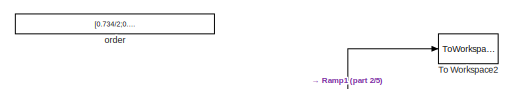
[diagram: root canvas - part 1/5, top left region]
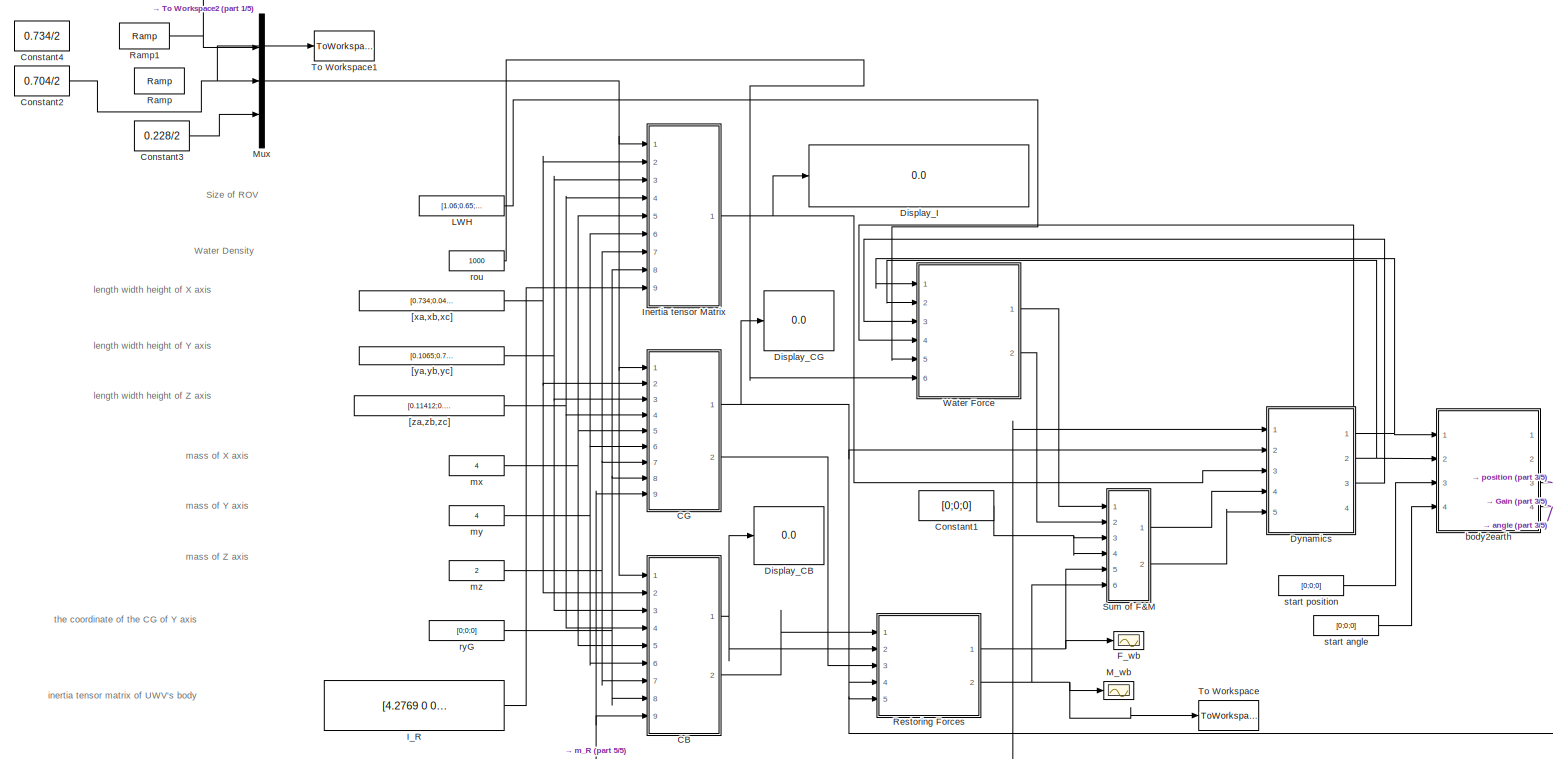
[diagram: root canvas - part 2/5, most of the canvas]
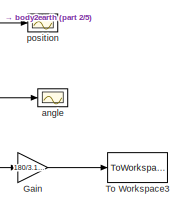
[diagram: root canvas - part 3/5, bottom right region]
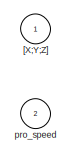
[diagram: root canvas - part 4/5, bottom left region]
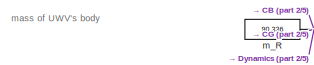
[diagram: root canvas - part 5/5, bottom left region]
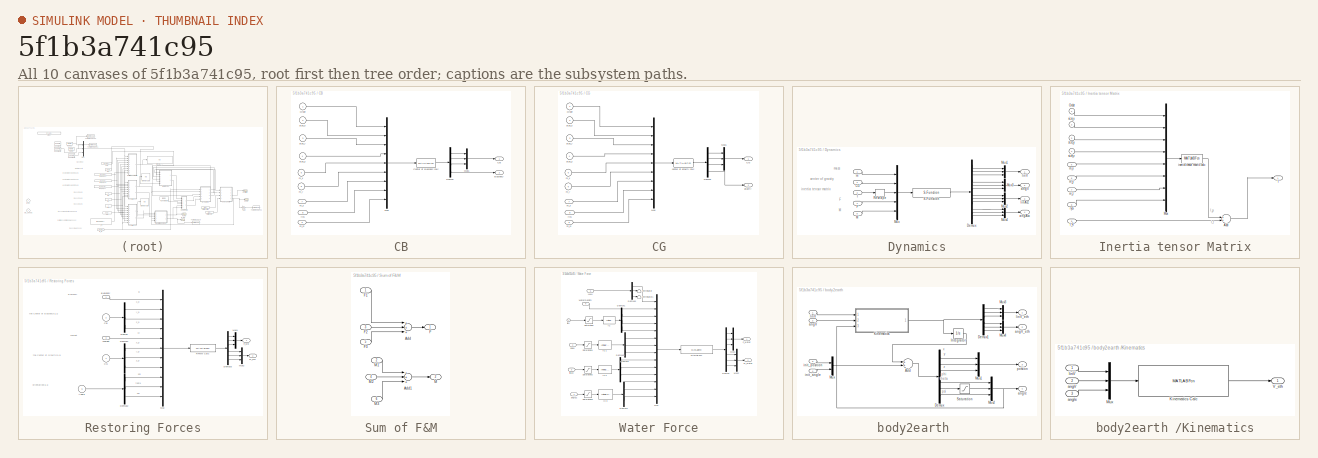
[diagram: thumbnail index - all 10 canvases of the model, root first then tree order]
MODEL slx_5f1b3a741c95
KIND model
CONFIG AbsTol = auto
CONFIG EnableMultiTasking = on
CONFIG FixedStep = 0.01
CONFIG MaxStep = auto
CONFIG MinStep = auto
CONFIG RelTol = 1e-3
CONFIG SampleTimeConstraint = Unconstrained
CONFIG Solver = ode3
CONFIG SolverName = ode3
CONFIG StartTime = 0.0
CONFIG StopTime = 5
BLOCK [SubSystem] CB
  Ports = [9, 2]
  RequestExecContextInheritance = off
BLOCK [Outport] CB/Buoyancy
  IconDisplay = Port number
  Port = 2
BLOCK [Outport] CB/CB
  IconDisplay = Port number
BLOCK [MATLABFcn] CB/Center of Buoyancy calc
  MATLABFcn = CB
  Output1D = off
  Ports = [1, 1]
BLOCK [Demux] CB/Demux
  DisplayOption = bar
  Ports = [1, 4]
BLOCK [Mux] CB/Mux
  DisplayOption = bar
  Inputs = 9
  Ports = [9, 1]
BLOCK [Mux] CB/Mux1
  DisplayOption = bar
  Inputs = 3
  Ports = [3, 1]
BLOCK [Inport] CB/Order
  IconDisplay = Port number
BLOCK [Inport] CB/m_R
  IconDisplay = Port number
  Port = 9
BLOCK [Inport] CB/m_x
  IconDisplay = Port number
  Port = 5
BLOCK [Inport] CB/m_y
  IconDisplay = Port number
  Port = 6
BLOCK [Inport] CB/m_z
  IconDisplay = Port number
  Port = 7
BLOCK [Inport] CB/ryG
  IconDisplay = Port number
  Port = 8
BLOCK [Inport] CB/size_x
  IconDisplay = Port number
  Port = 2
BLOCK [Inport] CB/size_y
  IconDisplay = Port number
  Port = 3
BLOCK [Inport] CB/size_z
  IconDisplay = Port number
  Port = 4
BLOCK [SubSystem] CG
  Ports = [9, 2]
  RequestExecContextInheritance = off
BLOCK [Outport] CG/CG
  IconDisplay = Port number
BLOCK [Demux] CG/Demux
  DisplayOption = bar
  Ports = [1, 4]
BLOCK [Mux] CG/Mux
  DisplayOption = bar
  Inputs = 9
  Ports = [9, 1]
BLOCK [Mux] CG/Mux1
  DisplayOption = bar
  Inputs = 3
  Ports = [3, 1]
BLOCK [Inport] CG/Order
  IconDisplay = Port number
BLOCK [MATLABFcn] CG/center of gravity calc
  MATLABFcn = CG
  Output1D = off
  Ports = [1, 1]
BLOCK [Outport] CG/gravity
  IconDisplay = Port number
  Port = 2
BLOCK [Inport] CG/m_R
  IconDisplay = Port number
  Port = 9
BLOCK [Inport] CG/m_x
  IconDisplay = Port number
  Port = 5
BLOCK [Inport] CG/m_y
  IconDisplay = Port number
  Port = 6
BLOCK [Inport] CG/m_z
  IconDisplay = Port number
  Port = 7
BLOCK [Inport] CG/ryG
  IconDisplay = Port number
  Port = 8
BLOCK [Inport] CG/size_x
  IconDisplay = Port number
  Port = 2
BLOCK [Inport] CG/size_y
  IconDisplay = Port number
  Port = 3
BLOCK [Inport] CG/size_z
  IconDisplay = Port number
  Port = 4
BLOCK [Constant] Constant1
  Value = [0;0;0]
BLOCK [Constant] Constant2
  Value = 0.704/2
BLOCK [Constant] Constant3
  Value = 0.228/2
BLOCK [Constant] Constant4
  Value = 0.734/2
BLOCK [Display] Display_CB
  Decimation = 1
  Ports = [1]
BLOCK [Display] Display_CG
  Decimation = 1
  Ports = [1]
BLOCK [Display] Display_I
  Decimation = 1
  Ports = [1]
BLOCK [SubSystem] Dynamics
  Ports = [5, 4]
  RequestExecContextInheritance = off
BLOCK [Inport] Dynamics/CG
  IconDisplay = Port number
  Port = 2
BLOCK [Demux] Dynamics/Demux
  DisplayOption = bar
  Outputs = 12
  Ports = [1, 12]
BLOCK [Inport] Dynamics/F
  IconDisplay = Port number
  Port = 4
BLOCK [Inport] Dynamics/I
  IconDisplay = Port number
  Port = 3
BLOCK [Inport] Dynamics/M
  IconDisplay = Port number
  Port = 5
BLOCK [Mux] Dynamics/Mux
  DisplayOption = bar
  Inputs = 5
  Ports = [5, 1]
BLOCK [Mux] Dynamics/Mux1
  DisplayOption = bar
  Inputs = 3
  Ports = [3, 1]
BLOCK [Mux] Dynamics/Mux2
  DisplayOption = bar
  Inputs = 3
  Ports = [3, 1]
BLOCK [Mux] Dynamics/Mux3
  DisplayOption = bar
  Inputs = 3
  Ports = [3, 1]
BLOCK [Mux] Dynamics/Mux4
  DisplayOption = bar
  Inputs = 3
  Ports = [3, 1]
BLOCK [Reshape] Dynamics/Reshape
  Ports = [1, 1]
BLOCK [S-Function] Dynamics/S-Function
  EnableBusSupport = off
  FunctionName = Decoupled_Dynamics
  Ports = [1, 1]
  SFcnIsStateOwnerBlock = off
  SFunctionDeploymentMode = off
BLOCK [Outport] Dynamics/angAcc
  IconDisplay = Port number
  Port = 4
BLOCK [Outport] Dynamics/angV
  IconDisplay = Port number
  Port = 2
BLOCK [Outport] Dynamics/linAcc
  IconDisplay = Port number
  Port = 3
BLOCK [Outport] Dynamics/linV
  IconDisplay = Port number
BLOCK [Inport] Dynamics/m
  IconDisplay = Port number
BLOCK [Scope] F_wb
  Floating = off
  NumInputPorts = 1
  Ports = [1]
  ScopeSpecificationString = C++SS(StrPVP('Location','[188, 390, 512, 629]'),StrPVP('Open','off'),MxPVP('AxesTitles',53,'struct(''axes1'',''%<SignalLabel>'')'),MxPVP('ScopeGraphics',56,'struct(''FigureColor'',''[0.5 0.5 0.5]'',''AxesColor'',''[0 0 0]'',''AxesTickColor'',''[1 1 1]'',''LineColors'',''[1 1 0;1 0 1;0 1 1;1 0 0;0 1 0;0 0 1]'',''LineStyles'',''-|-|-|-|-|-'',''LineWidths'',''[0.5 0.5 0.5 0.5 0.5 0.5]'',''MarkerStyle...<+239ch>
BLOCK [Gain] Gain
  Gain = 180/3.1415
  OutDataTypeStr = Inherit: Inherit via internal rule
  ParamDataTypeStr = Inherit: Inherit via internal rule
  SaturateOnIntegerOverflow = off
BLOCK [Constant] I_R
  Value = [4.2769 0 0;0 10.546 0;0 0 11.5899]
BLOCK [SubSystem] Inertia tensor Matrix
  Ports = [9, 1]
  RequestExecContextInheritance = off
BLOCK [Sum] Inertia tensor Matrix/Add
  InputSameDT = off
  OutDataTypeStr = Inherit: Inherit via internal rule
  Ports = [2, 1]
  SaturateOnIntegerOverflow = off
BLOCK [Outport] Inertia tensor Matrix/I
  IconDisplay = Port number
BLOCK [Inport] Inertia tensor Matrix/I_R
  IconDisplay = Port number
  Port = 9
BLOCK [Mux] Inertia tensor Matrix/Mux
  DisplayOption = bar
  Inputs = 8
  Ports = [8, 1]
BLOCK [Inport] Inertia tensor Matrix/Order
  IconDisplay = Port number
BLOCK [MATLABFcn] Inertia tensor Matrix/inertia tensor matrix calc
  MATLABFcn = InertiaTensorMatrix
  Output1D = off
  Ports = [1, 1]
BLOCK [Inport] Inertia tensor Matrix/m_x
  IconDisplay = Port number
  Port = 5
BLOCK [Inport] Inertia tensor Matrix/m_y
  IconDisplay = Port number
  Port = 6
BLOCK [Inport] Inertia tensor Matrix/m_z
  IconDisplay = Port number
  Port = 7
BLOCK [Inport] Inertia tensor Matrix/ryG
  IconDisplay = Port number
  Port = 8
BLOCK [Inport] Inertia tensor Matrix/size_x
  IconDisplay = Port number
  Port = 2
BLOCK [Inport] Inertia tensor Matrix/size_y
  IconDisplay = Port number
  Port = 3
BLOCK [Inport] Inertia tensor Matrix/size_z
  IconDisplay = Port number
  Port = 4
BLOCK [Constant] LWH
  Value = [1.06;0.65;0.66]
BLOCK [Scope] M_wb
  Floating = off
  NumInputPorts = 1
  Ports = [1]
  ScopeSpecificationString = C++SS(StrPVP('Location','[153, 94, 773, 645]'),StrPVP('Open','off'),MxPVP('AxesTitles',53,'struct(''axes1'',''%<SignalLabel>'')'),MxPVP('ScopeGraphics',56,'struct(''FigureColor'',''[0.5 0.5 0.5]'',''AxesColor'',''[0 0 0]'',''AxesTickColor'',''[1 1 1]'',''LineColors'',''[1 1 0;1 0 1;0 1 1;1 0 0;0 1 0;0 0 1]'',''LineStyles'',''-|-|-|-|-|-'',''LineWidths'',''[0.5 0.5 0.5 0.5 0.5 0.5]'',''MarkerStyles...<+223ch>
BLOCK [Mux] Mux
  DisplayOption = bar
  Inputs = 3
  Ports = [3, 1]
BLOCK [Reference] Ramp  REF=simulink/Sources/Ramp
  Ports = [0, 1]
  SourceBlock = simulink/Sources/Ramp
  SourceProductBaseCode = SL
  SourceProductName = Simulink
  SourceType = Ramp
BLOCK [Reference] Ramp1  REF=simulink/Sources/Ramp
  Ports = [0, 1]
  SourceBlock = simulink/Sources/Ramp
  SourceProductBaseCode = SL
  SourceProductName = Simulink
  SourceType = Ramp
BLOCK [SubSystem] Restoring Forces
  Ports = [5, 2]
  RequestExecContextInheritance = off
BLOCK [Inport] Restoring Forces/Angle
  IconDisplay = Port number
  Port = 5
BLOCK [Inport] Restoring Forces/Buoyancy
  IconDisplay = Port number
BLOCK [Inport] Restoring Forces/CB
  IconDisplay = Port number
  Port = 2
BLOCK [Inport] Restoring Forces/CG
  IconDisplay = Port number
  Port = 4
BLOCK [Demux] Restoring Forces/Demux
  DisplayOption = bar
  Outputs = 3
  Ports = [1, 3]
BLOCK [Demux] Restoring Forces/Demux1
  DisplayOption = bar
  Outputs = 3
  Ports = [1, 3]
BLOCK [Demux] Restoring Forces/Demux2
  DisplayOption = bar
  Outputs = 3
  Ports = [1, 3]
BLOCK [Demux] Restoring Forces/Demux3
  DisplayOption = bar
  Outputs = 6
  Ports = [1, 6]
BLOCK [Outport] Restoring Forces/F_wb
  IconDisplay = Port number
BLOCK [Outport] Restoring Forces/M_wb
  IconDisplay = Port number
  Port = 2
BLOCK [Mux] Restoring Forces/Mux
  DisplayOption = bar
  Inputs = 11
  Ports = [11, 1]
BLOCK [Mux] Restoring Forces/Mux1
  DisplayOption = bar
  Inputs = 3
  Ports = [3, 1]
BLOCK [Mux] Restoring Forces/Mux2
  DisplayOption = bar
  Inputs = 3
  Ports = [3, 1]
BLOCK [MATLABFcn] Restoring Forces/RFMM Calc
  MATLABFcn = RFMM
  OutputDimensions = 6
  Ports = [1, 1]
BLOCK [Inport] Restoring Forces/Weight
  IconDisplay = Port number
  Port = 3
BLOCK [SubSystem] Sum of F&M
  Ports = [6, 2]
  RequestExecContextInheritance = off
BLOCK [Sum] Sum of F&M/Add
  InputSameDT = off
  Inputs = +++
  OutDataTypeStr = Inherit: Inherit via internal rule
  Ports = [3, 1]
  SaturateOnIntegerOverflow = off
BLOCK [Sum] Sum of F&M/Add1
  InputSameDT = off
  Inputs = +++
  OutDataTypeStr = Inherit: Inherit via internal rule
  Ports = [3, 1]
  SaturateOnIntegerOverflow = off
BLOCK [Outport] Sum of F&M/F
  IconDisplay = Port number
BLOCK [Inport] Sum of F&M/F1
  IconDisplay = Port number
BLOCK [Inport] Sum of F&M/F2
  IconDisplay = Port number
  Port = 3
BLOCK [Inport] Sum of F&M/F3
  IconDisplay = Port number
  Port = 5
BLOCK [Outport] Sum of F&M/M
  IconDisplay = Port number
  Port = 2
BLOCK [Inport] Sum of F&M/M1
  IconDisplay = Port number
  Port = 2
BLOCK [Inport] Sum of F&M/M2
  IconDisplay = Port number
  Port = 4
BLOCK [Inport] Sum of F&M/M3
  IconDisplay = Port number
  Port = 6
BLOCK [ToWorkspace] To Workspace
  FixptAsFi = on
  MaxDataPoints = inf
  Ports = [1]
  SampleTime = -1
  Save2DSignal = 3-D array (concatenate along third dimension)
  SaveFormat = Timeseries
  VariableName = M_wb
BLOCK [ToWorkspace] To Workspace1
  FixptAsFi = on
  MaxDataPoints = inf
  Ports = [1]
  SampleTime = -1
  Save2DSignal = 3-D array (concatenate along third dimension)
  SaveFormat = Timeseries
  VariableName = y
BLOCK [ToWorkspace] To Workspace2
  FixptAsFi = on
  MaxDataPoints = inf
  Ports = [1]
  SampleTime = -1
  Save2DSignal = 3-D array (concatenate along third dimension)
  SaveFormat = Timeseries
  VariableName = x
BLOCK [ToWorkspace] To Workspace3
  FixptAsFi = on
  MaxDataPoints = inf
  Ports = [1]
  SampleTime = -1
  Save2DSignal = 3-D array (concatenate along third dimension)
  SaveFormat = Timeseries
  VariableName = angle
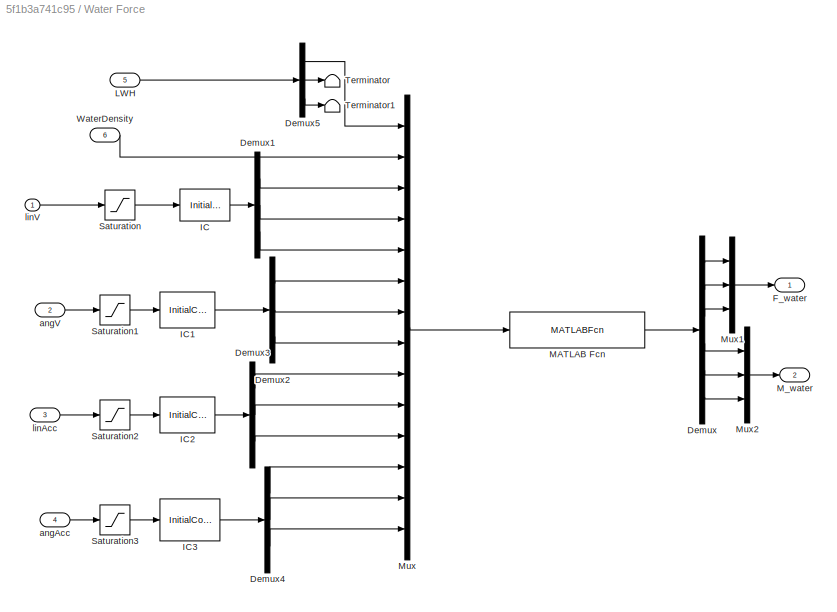
BLOCK [SubSystem] Water Force
  Ports = [6, 2]
  RequestExecContextInheritance = off
BLOCK [Demux] Water Force/Demux
  DisplayOption = bar
  Outputs = 6
  Ports = [1, 6]
BLOCK [Demux] Water Force/Demux1
  DisplayOption = bar
  Outputs = 3
  Ports = [1, 3]
BLOCK [Demux] Water Force/Demux2
  DisplayOption = bar
  Outputs = 3
  Ports = [1, 3]
BLOCK [Demux] Water Force/Demux3
  DisplayOption = bar
  Outputs = 3
  Ports = [1, 3]
BLOCK [Demux] Water Force/Demux4
  DisplayOption = bar
  Outputs = 3
  Ports = [1, 3]
BLOCK [Demux] Water Force/Demux5
  DisplayOption = bar
  Outputs = 3
  Ports = [1, 3]
BLOCK [Outport] Water Force/F_water
  IconDisplay = Port number
BLOCK [InitialCondition] Water Force/IC
  Value = 0.001
BLOCK [InitialCondition] Water Force/IC1
  Value = 0.001
BLOCK [InitialCondition] Water Force/IC2
  Value = 0.001
BLOCK [InitialCondition] Water Force/IC3
  Value = 0.001
BLOCK [Inport] Water Force/LWH
  IconDisplay = Port number
  Port = 5
BLOCK [MATLABFcn] Water Force/MATLAB Fcn
  MATLABFcn = ROV_ForceWater
  Output1D = off
  OutputDimensions = 6
  Ports = [1, 1]
BLOCK [Outport] Water Force/M_water
  IconDisplay = Port number
  Port = 2
BLOCK [Mux] Water Force/Mux
  DisplayOption = bar
  Inputs = 14
  Ports = [14, 1]
BLOCK [Mux] Water Force/Mux1
  DisplayOption = bar
  Inputs = 3
  Ports = [3, 1]
BLOCK [Mux] Water Force/Mux2
  DisplayOption = bar
  Inputs = 3
  Ports = [3, 1]
BLOCK [Saturate] Water Force/Saturation
  InputPortMap = u0
  LowerLimit = -0.3
  Ports = [1, 1]
  UpperLimit = 0.3
BLOCK [Saturate] Water Force/Saturation1
  InputPortMap = u0
  LowerLimit = -0.4
  Ports = [1, 1]
  UpperLimit = 0.4
BLOCK [Saturate] Water Force/Saturation2
  InputPortMap = u0
  LowerLimit = -2.5
  Ports = [1, 1]
  UpperLimit = 2.5
BLOCK [Saturate] Water Force/Saturation3
  InputPortMap = u0
  LowerLimit = -10
  Ports = [1, 1]
  UpperLimit = 10
BLOCK [Terminator] Water Force/Terminator
BLOCK [Terminator] Water Force/Terminator1
BLOCK [Inport] Water Force/WaterDensity
  IconDisplay = Port number
  Port = 6
BLOCK [Inport] Water Force/angAcc
  IconDisplay = Port number
  Port = 4
BLOCK [Inport] Water Force/angV
  IconDisplay = Port number
  Port = 2
BLOCK [Inport] Water Force/linAcc
  IconDisplay = Port number
  Port = 3
BLOCK [Inport] Water Force/linV
  IconDisplay = Port number
BLOCK [Inport] [X;Y;Z]
  IconDisplay = Port number
BLOCK [Constant] [xa,xb,xc]
  Value = [0.734;0.0445;0.0735]
BLOCK [Constant] [ya,yb,yc]
  Value = [0.1065;0.704;0.0445]
BLOCK [Constant] [za,zb,zc]
  Value = [0.11412;0.038;0.228]
BLOCK [Scope] angle
  Floating = off
  NumInputPorts = 1
  Ports = [1]
  ScopeSpecificationString = C++SS(StrPVP('Location','[812, 98, 1588, 652]'),StrPVP('Open','off'),MxPVP('AxesTitles',53,'struct(''axes1'',''%<SignalLabel>'')'),MxPVP('ScopeGraphics',56,'struct(''FigureColor'',''[0.5 0.5 0.5]'',''AxesColor'',''[0 0 0]'',''AxesTickColor'',''[1 1 1]'',''LineColors'',''[1 1 0;1 0 1;0 1 1;1 0 0;0 1 0;0 0 1]'',''LineStyles'',''-|-|-|-|-|-'',''LineWidths'',''[0.5 0.5 0.5 0.5 0.5 0.5]'',''MarkerStyle...<+224ch>
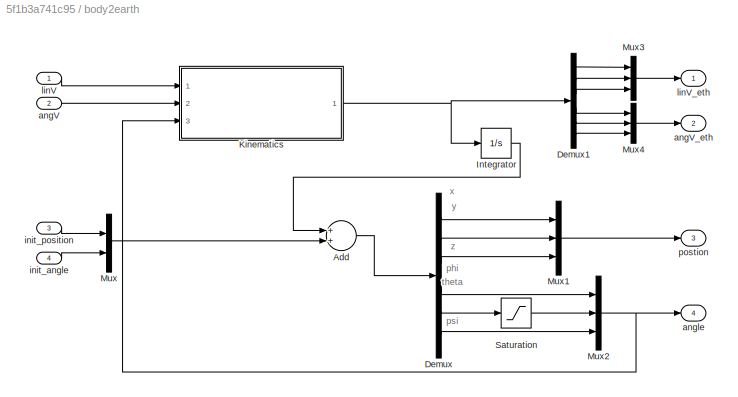
BLOCK [SubSystem] body2earth 
  Ports = [4, 4]
  RequestExecContextInheritance = off
BLOCK [Sum] body2earth /Add
  InputSameDT = off
  OutDataTypeStr = Inherit: Inherit via internal rule
  Ports = [2, 1]
  SaturateOnIntegerOverflow = off
BLOCK [Demux] body2earth /Demux
  DisplayOption = bar
  Outputs = 6
  Ports = [1, 6]
BLOCK [Demux] body2earth /Demux1
  DisplayOption = bar
  Outputs = 6
  Ports = [1, 6]
BLOCK [Integrator] body2earth /Integrator
  Ports = [1, 1]
BLOCK [SubSystem] body2earth /Kinematics
  Ports = [3, 1]
  RequestExecContextInheritance = off
BLOCK [MATLABFcn] body2earth /Kinematics/Kinematics Calc
  MATLABFcn = Kinematics
  OutputDimensions = 6
  Ports = [1, 1]
BLOCK [Mux] body2earth /Kinematics/Mux
  DisplayOption = bar
  Inputs = 3
  Ports = [3, 1]
BLOCK [Outport] body2earth /Kinematics/V_eth
  IconDisplay = Port number
BLOCK [Inport] body2earth /Kinematics/angV
  IconDisplay = Port number
  Port = 2
BLOCK [Inport] body2earth /Kinematics/angle
  IconDisplay = Port number
  Port = 3
BLOCK [Inport] body2earth /Kinematics/linV
  IconDisplay = Port number
BLOCK [Mux] body2earth /Mux
  DisplayOption = bar
  Inputs = 2
  Ports = [2, 1]
BLOCK [Mux] body2earth /Mux1
  DisplayOption = bar
  Inputs = 3
  Ports = [3, 1]
BLOCK [Mux] body2earth /Mux2
  DisplayOption = bar
  Inputs = 3
  Ports = [3, 1]
BLOCK [Mux] body2earth /Mux3
  DisplayOption = bar
  Inputs = 3
  Ports = [3, 1]
BLOCK [Mux] body2earth /Mux4
  DisplayOption = bar
  Inputs = 3
  Ports = [3, 1]
BLOCK [Saturate] body2earth /Saturation
  InputPortMap = u0
  LowerLimit = -1.4
  Ports = [1, 1]
  UpperLimit = 1.4
BLOCK [Inport] body2earth /angV
  IconDisplay = Port number
  Port = 2
BLOCK [Outport] body2earth /angV_eth
  IconDisplay = Port number
  Port = 2
BLOCK [Outport] body2earth /angle
  IconDisplay = Port number
  Port = 4
BLOCK [Inport] body2earth /init_angle
  IconDisplay = Port number
  Port = 4
BLOCK [Inport] body2earth /init_position
  IconDisplay = Port number
  Port = 3
BLOCK [Inport] body2earth /linV
  IconDisplay = Port number
BLOCK [Outport] body2earth /linV_eth
  IconDisplay = Port number
BLOCK [Outport] body2earth /postion
  IconDisplay = Port number
  Port = 3
BLOCK [Constant] m_R
  Value = 90.336
BLOCK [Constant] mx
  Value = 4
BLOCK [Constant] my
  Value = 4
BLOCK [Constant] mz
  Value = 2
BLOCK [Constant] order
  Value = [0.734/2;0.704/2;0.228/2]
BLOCK [Scope] position
  Floating = off
  NumInputPorts = 1
  Ports = [1]
  ScopeSpecificationString = Simulink.scopes.TimeScopeBlockCfg('CurrentConfiguration', extmgr.ConfigurationSet(extmgr.Configuration('Core','General UI',true),extmgr.Configuration('Core','Source UI',true),extmgr.Configuration('Sources','WiredSimulink',true,'DataLoggingVariableName','ScopeData2','DataLoggingLimitDataPoints',true,'DataLoggingSaveFormat','Array','DataLoggingDecimation','1','DataLoggingDecimateData',true),extmgr.C...<+1711ch>
BLOCK [Inport] pro_speed
  IconDisplay = Port number
  Port = 2
BLOCK [Constant] rou
  Value = 1000
BLOCK [Constant] ryG
  Value = [0;0;0]
BLOCK [Constant] start angle
  Value = [0;0;0]
BLOCK [Constant] start position
  Value = [0;0;0]
ANNOTATION (root): Size of ROV
ANNOTATION (root): Water Density
ANNOTATION (root): inertia tensor matrix of UWV's body
ANNOTATION (root): length width height of X axis
ANNOTATION (root): length width height of Y axis
ANNOTATION (root): length width height of Z axis
ANNOTATION (root): mass of UWV's body
ANNOTATION (root): mass of X axis
ANNOTATION (root): mass of Y axis
ANNOTATION (root): mass of Z axis
ANNOTATION (root): the coordinate of the CG of Y axis
ANNOTATION Dynamics: F
ANNOTATION Dynamics: M
ANNOTATION Dynamics: center of gravity
ANNOTATION Dynamics: inertia tensor matrix
ANNOTATION Dynamics: mass
ANNOTATION Inertia tensor Matrix: I_p
ANNOTATION Inertia tensor Matrix: I_r
ANNOTATION Restoring Forces: Buoyancy
ANNOTATION Restoring Forces: Weight
ANNOTATION Restoring Forces: orientation[3,1]
ANNOTATION Restoring Forces: the Center of Buoyancy[3,1]
ANNOTATION Restoring Forces: the Center of Gravity[3,1]
ANNOTATION Restoring Forces: B
ANNOTATION Restoring Forces: W
ANNOTATION Restoring Forces: phi
ANNOTATION Restoring Forces: psi
ANNOTATION Restoring Forces: theta
ANNOTATION Restoring Forces: x_b
ANNOTATION Restoring Forces: x_g
ANNOTATION Restoring Forces: y_b
ANNOTATION Restoring Forces: y_g
ANNOTATION Restoring Forces: z_b
ANNOTATION Restoring Forces: z_g
ANNOTATION body2earth : phi
ANNOTATION body2earth : psi
ANNOTATION body2earth : theta
ANNOTATION body2earth : x
ANNOTATION body2earth : y
ANNOTATION body2earth : z
LINE CB/Center of Buoyancy calc:1 -> CB/Demux:1
LINE CB/Demux:1 -> CB/Mux1:1
LINE CB/Demux:2 -> CB/Mux1:2
LINE CB/Demux:3 -> CB/Mux1:3
LINE CB/Demux:4 -> CB/Buoyancy:1
LINE CB/Mux1:1 -> CB/CB:1
LINE CB/Mux:1 -> CB/Center of Buoyancy calc:1
LINE CB/Order:1 -> CB/Mux:1
LINE CB/m_R:1 -> CB/Mux:9
LINE CB/m_x:1 -> CB/Mux:5
LINE CB/m_y:1 -> CB/Mux:6
LINE CB/m_z:1 -> CB/Mux:7
LINE CB/ryG:1 -> CB/Mux:8
LINE CB/size_x:1 -> CB/Mux:2
LINE CB/size_y:1 -> CB/Mux:3
LINE CB/size_z:1 -> CB/Mux:4
NET CB:1 -> Display_CB:1, Restoring Forces:2
LINE CB:2 -> Restoring Forces:1
LINE CG/Demux:1 -> CG/Mux1:1
LINE CG/Demux:2 -> CG/Mux1:2
LINE CG/Demux:3 -> CG/Mux1:3
LINE CG/Demux:4 -> CG/gravity:1
LINE CG/Mux1:1 -> CG/CG:1
LINE CG/Mux:1 -> CG/center of gravity calc:1
LINE CG/Order:1 -> CG/Mux:1
LINE CG/center of gravity calc:1 -> CG/Demux:1
LINE CG/m_R:1 -> CG/Mux:9
LINE CG/m_x:1 -> CG/Mux:5
LINE CG/m_y:1 -> CG/Mux:6
LINE CG/m_z:1 -> CG/Mux:7
LINE CG/ryG:1 -> CG/Mux:8
LINE CG/size_x:1 -> CG/Mux:2
LINE CG/size_y:1 -> CG/Mux:3
LINE CG/size_z:1 -> CG/Mux:4
NET CG:1 -> Display_CG:1, Dynamics:2, Restoring Forces:4
LINE CG:2 -> Restoring Forces:3
NET Constant1:1 -> Sum of F&M:3, Sum of F&M:4
NET Constant2:1 -> Mux:2, To Workspace1:1
LINE Constant3:1 -> Mux:3
LINE Dynamics/CG:1 -> Dynamics/Mux:2
LINE Dynamics/Demux:1 -> Dynamics/Mux1:1
LINE Dynamics/Demux:10 -> Dynamics/Mux4:1
LINE Dynamics/Demux:11 -> Dynamics/Mux4:2
LINE Dynamics/Demux:12 -> Dynamics/Mux4:3
LINE Dynamics/Demux:2 -> Dynamics/Mux1:2
LINE Dynamics/Demux:3 -> Dynamics/Mux1:3
LINE Dynamics/Demux:4 -> Dynamics/Mux3:1
LINE Dynamics/Demux:5 -> Dynamics/Mux3:2
LINE Dynamics/Demux:6 -> Dynamics/Mux3:3
LINE Dynamics/Demux:7 -> Dynamics/Mux2:1
LINE Dynamics/Demux:8 -> Dynamics/Mux2:2
LINE Dynamics/Demux:9 -> Dynamics/Mux2:3
LINE Dynamics/F:1 -> Dynamics/Mux:4
LINE Dynamics/I:1 -> Dynamics/Reshape:1
LINE Dynamics/M:1 -> Dynamics/Mux:5
LINE Dynamics/Mux1:1 -> Dynamics/linV:1
LINE Dynamics/Mux2:1 -> Dynamics/linAcc:1
LINE Dynamics/Mux3:1 -> Dynamics/angV:1
LINE Dynamics/Mux4:1 -> Dynamics/angAcc:1
LINE Dynamics/Mux:1 -> Dynamics/S-Function:1
LINE Dynamics/Reshape:1 -> Dynamics/Mux:3
LINE Dynamics/S-Function:1 -> Dynamics/Demux:1
LINE Dynamics/m:1 -> Dynamics/Mux:1
NET Dynamics:1 -> Water Force:1, body2earth :1
NET Dynamics:2 -> Water Force:2, body2earth :2
LINE Dynamics:3 -> Water Force:3
LINE Dynamics:4 -> Water Force:4
LINE Gain:1 -> To Workspace3:1
LINE I_R:1 -> Inertia tensor Matrix:9
LINE Inertia tensor Matrix/Add:1 -> Inertia tensor Matrix/I:1
LINE Inertia tensor Matrix/I_R:1 -> Inertia tensor Matrix/Add:2
LINE Inertia tensor Matrix/Mux:1 -> Inertia tensor Matrix/inertia tensor matrix calc:1
LINE Inertia tensor Matrix/Order:1 -> Inertia tensor Matrix/Mux:1
LINE Inertia tensor Matrix/inertia tensor matrix calc:1 -> Inertia tensor Matrix/Add:1
LINE Inertia tensor Matrix/m_x:1 -> Inertia tensor Matrix/Mux:5
LINE Inertia tensor Matrix/m_y:1 -> Inertia tensor Matrix/Mux:6
LINE Inertia tensor Matrix/m_z:1 -> Inertia tensor Matrix/Mux:7
LINE Inertia tensor Matrix/ryG:1 -> Inertia tensor Matrix/Mux:8
LINE Inertia tensor Matrix/size_x:1 -> Inertia tensor Matrix/Mux:2
LINE Inertia tensor Matrix/size_y:1 -> Inertia tensor Matrix/Mux:3
LINE Inertia tensor Matrix/size_z:1 -> Inertia tensor Matrix/Mux:4
NET Inertia tensor Matrix:1 -> Display_I:1, Dynamics:3
LINE LWH:1 -> Water Force:5
NET Mux:1 -> CB:1, CG:1, Inertia tensor Matrix:1
NET Ramp1:1 -> Mux:1, To Workspace2:1
LINE Restoring Forces/Angle:1 -> Restoring Forces/Demux2:1
LINE Restoring Forces/Buoyancy:1 -> Restoring Forces/Mux:1
LINE Restoring Forces/CB:1 -> Restoring Forces/Demux:1
LINE Restoring Forces/CG:1 -> Restoring Forces/Demux1:1
LINE Restoring Forces/Demux1:1 -> Restoring Forces/Mux:6
LINE Restoring Forces/Demux1:2 -> Restoring Forces/Mux:7
LINE Restoring Forces/Demux1:3 -> Restoring Forces/Mux:8
LINE Restoring Forces/Demux2:1 -> Restoring Forces/Mux:9
LINE Restoring Forces/Demux2:2 -> Restoring Forces/Mux:10
LINE Restoring Forces/Demux2:3 -> Restoring Forces/Mux:11
LINE Restoring Forces/Demux3:1 -> Restoring Forces/Mux1:1
LINE Restoring Forces/Demux3:2 -> Restoring Forces/Mux1:2
LINE Restoring Forces/Demux3:3 -> Restoring Forces/Mux1:3
LINE Restoring Forces/Demux3:4 -> Restoring Forces/Mux2:1
LINE Restoring Forces/Demux3:5 -> Restoring Forces/Mux2:2
LINE Restoring Forces/Demux3:6 -> Restoring Forces/Mux2:3
LINE Restoring Forces/Demux:1 -> Restoring Forces/Mux:2
LINE Restoring Forces/Demux:2 -> Restoring Forces/Mux:3
LINE Restoring Forces/Demux:3 -> Restoring Forces/Mux:4
LINE Restoring Forces/Mux1:1 -> Restoring Forces/F_wb:1
LINE Restoring Forces/Mux2:1 -> Restoring Forces/M_wb:1
LINE Restoring Forces/Mux:1 -> Restoring Forces/RFMM Calc:1
LINE Restoring Forces/RFMM Calc:1 -> Restoring Forces/Demux3:1
LINE Restoring Forces/Weight:1 -> Restoring Forces/Mux:5
NET Restoring Forces:1 -> F_wb:1, Sum of F&M:5
NET Restoring Forces:2 -> M_wb:1, Sum of F&M:6, To Workspace:1
LINE Sum of F&M/Add1:1 -> Sum of F&M/M:1
LINE Sum of F&M/Add:1 -> Sum of F&M/F:1
LINE Sum of F&M/F1:1 -> Sum of F&M/Add:1
LINE Sum of F&M/F2:1 -> Sum of F&M/Add:2
LINE Sum of F&M/F3:1 -> Sum of F&M/Add:3
LINE Sum of F&M/M1:1 -> Sum of F&M/Add1:1
LINE Sum of F&M/M2:1 -> Sum of F&M/Add1:2
LINE Sum of F&M/M3:1 -> Sum of F&M/Add1:3
LINE Sum of F&M:1 -> Dynamics:4
LINE Sum of F&M:2 -> Dynamics:5
LINE Water Force/Demux1:1 -> Water Force/Mux:3
LINE Water Force/Demux1:2 -> Water Force/Mux:4
LINE Water Force/Demux1:3 -> Water Force/Mux:5
LINE Water Force/Demux2:1 -> Water Force/Mux:6
LINE Water Force/Demux2:2 -> Water Force/Mux:7
LINE Water Force/Demux2:3 -> Water Force/Mux:8
LINE Water Force/Demux3:1 -> Water Force/Mux:9
LINE Water Force/Demux3:2 -> Water Force/Mux:10
LINE Water Force/Demux3:3 -> Water Force/Mux:11
LINE Water Force/Demux4:1 -> Water Force/Mux:12
LINE Water Force/Demux4:2 -> Water Force/Mux:13
LINE Water Force/Demux4:3 -> Water Force/Mux:14
LINE Water Force/Demux5:1 -> Water Force/Mux:1
LINE Water Force/Demux5:2 -> Water Force/Terminator:1
LINE Water Force/Demux5:3 -> Water Force/Terminator1:1
LINE Water Force/Demux:1 -> Water Force/Mux1:1
LINE Water Force/Demux:2 -> Water Force/Mux1:2
LINE Water Force/Demux:3 -> Water Force/Mux1:3
LINE Water Force/Demux:4 -> Water Force/Mux2:1
LINE Water Force/Demux:5 -> Water Force/Mux2:2
LINE Water Force/Demux:6 -> Water Force/Mux2:3
LINE Water Force/IC1:1 -> Water Force/Demux2:1
LINE Water Force/IC2:1 -> Water Force/Demux3:1
LINE Water Force/IC3:1 -> Water Force/Demux4:1
LINE Water Force/IC:1 -> Water Force/Demux1:1
LINE Water Force/LWH:1 -> Water Force/Demux5:1
LINE Water Force/MATLAB Fcn:1 -> Water Force/Demux:1
LINE Water Force/Mux1:1 -> Water Force/F_water:1
LINE Water Force/Mux2:1 -> Water Force/M_water:1
LINE Water Force/Mux:1 -> Water Force/MATLAB Fcn:1
LINE Water Force/Saturation1:1 -> Water Force/IC1:1
LINE Water Force/Saturation2:1 -> Water Force/IC2:1
LINE Water Force/Saturation3:1 -> Water Force/IC3:1
LINE Water Force/Saturation:1 -> Water Force/IC:1
LINE Water Force/WaterDensity:1 -> Water Force/Mux:2
LINE Water Force/angAcc:1 -> Water Force/Saturation3:1
LINE Water Force/angV:1 -> Water Force/Saturation1:1
LINE Water Force/linAcc:1 -> Water Force/Saturation2:1
LINE Water Force/linV:1 -> Water Force/Saturation:1
LINE Water Force:1 -> Sum of F&M:1
LINE Water Force:2 -> Sum of F&M:2
NET [xa,xb,xc]:1 -> CB:2, CG:2, Inertia tensor Matrix:2
NET [ya,yb,yc]:1 -> CB:3, CG:3, Inertia tensor Matrix:3
NET [za,zb,zc]:1 -> CB:4, CG:4, Inertia tensor Matrix:4
LINE body2earth /Add:1 -> body2earth /Demux:1
LINE body2earth /Demux1:1 -> body2earth /Mux3:1
LINE body2earth /Demux1:2 -> body2earth /Mux3:2
LINE body2earth /Demux1:3 -> body2earth /Mux3:3
LINE body2earth /Demux1:4 -> body2earth /Mux4:1
LINE body2earth /Demux1:5 -> body2earth /Mux4:2
LINE body2earth /Demux1:6 -> body2earth /Mux4:3
LINE body2earth /Demux:1 -> body2earth /Mux1:1
LINE body2earth /Demux:2 -> body2earth /Mux1:2
LINE body2earth /Demux:3 -> body2earth /Mux1:3
LINE body2earth /Demux:4 -> body2earth /Mux2:1
LINE body2earth /Demux:5 -> body2earth /Saturation:1
LINE body2earth /Demux:6 -> body2earth /Mux2:3
LINE body2earth /Integrator:1 -> body2earth /Add:1
LINE body2earth /Kinematics/Kinematics Calc:1 -> body2earth /Kinematics/V_eth:1
LINE body2earth /Kinematics/Mux:1 -> body2earth /Kinematics/Kinematics Calc:1
LINE body2earth /Kinematics/angV:1 -> body2earth /Kinematics/Mux:2
LINE body2earth /Kinematics/angle:1 -> body2earth /Kinematics/Mux:3
LINE body2earth /Kinematics/linV:1 -> body2earth /Kinematics/Mux:1
NET body2earth /Kinematics:1 -> body2earth /Demux1:1, body2earth /Integrator:1
LINE body2earth /Mux1:1 -> body2earth /postion:1
NET body2earth /Mux2:1 -> body2earth /Kinematics:3, body2earth /angle:1
LINE body2earth /Mux3:1 -> body2earth /linV_eth:1
LINE body2earth /Mux4:1 -> body2earth /angV_eth:1
LINE body2earth /Mux:1 -> body2earth /Add:2
LINE body2earth /Saturation:1 -> body2earth /Mux2:2
LINE body2earth /angV:1 -> body2earth /Kinematics:2
LINE body2earth /init_angle:1 -> body2earth /Mux:2
LINE body2earth /init_position:1 -> body2earth /Mux:1
LINE body2earth /linV:1 -> body2earth /Kinematics:1
LINE body2earth :3 -> position:1
NET body2earth :4 -> Gain:1, Restoring Forces:5, angle:1
NET m_R:1 -> CB:9, CG:9, Dynamics:1
NET mx:1 -> CB:5, CG:5, Inertia tensor Matrix:5
NET my:1 -> CB:6, CG:6, Inertia tensor Matrix:6
NET mz:1 -> CB:7, CG:7, Inertia tensor Matrix:7
LINE rou:1 -> Water Force:6
NET ryG:1 -> CB:8, CG:8, Inertia tensor Matrix:8
LINE start angle:1 -> body2earth :4
LINE start position:1 -> body2earth :3
note: NET lines group one-source signal fan-out (src -> all destinations, sorted); 1:1 wires keep LINE
